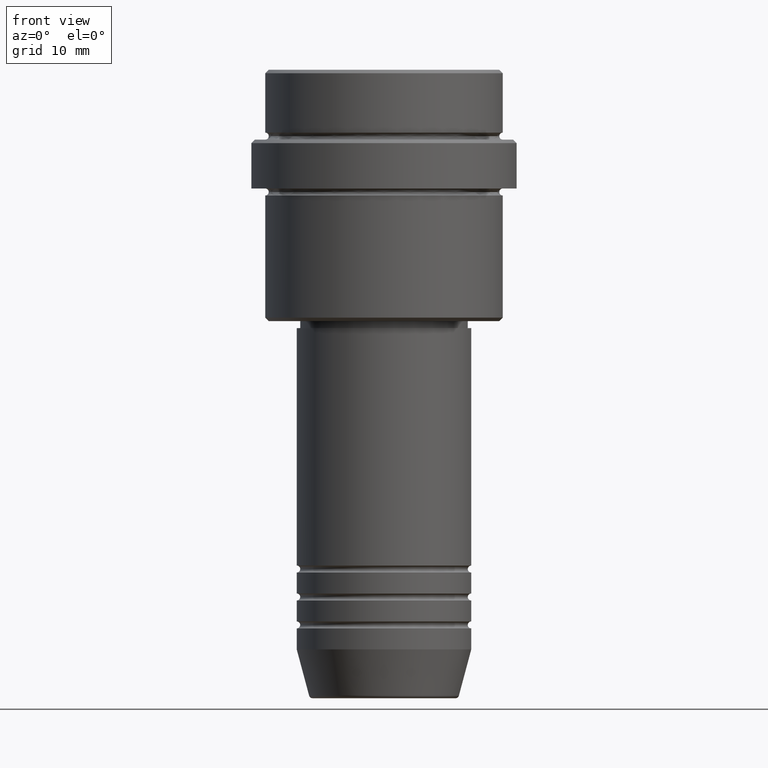
[diagram: clean part render]
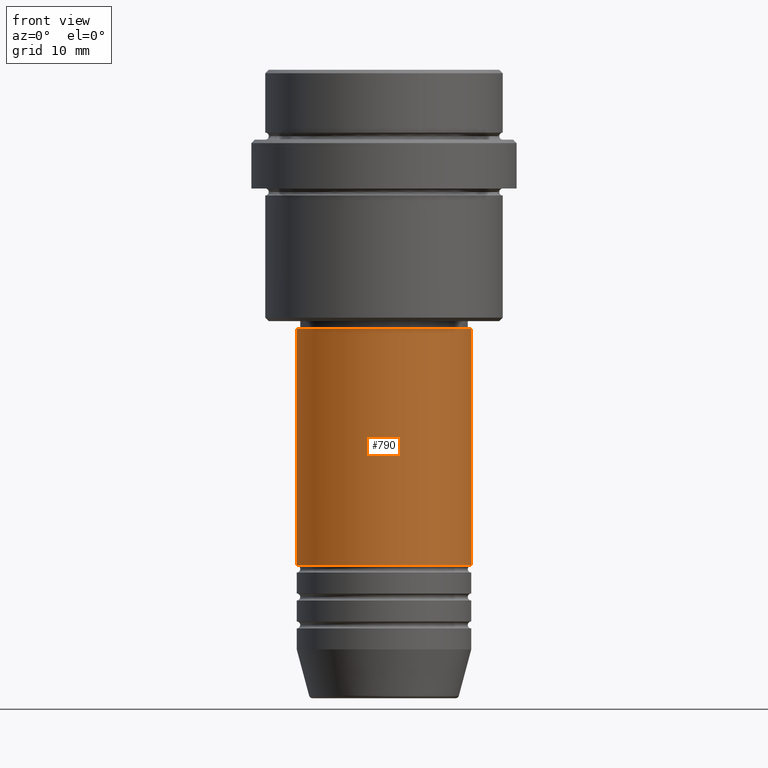
[diagram: same view with one face highlighted and labeled with its STEP entity id]
A machine part, front view. The second image highlights one B-rep face of the part: STEP entity #790.
In plain terms, the highlighted cylindrical surface (partial cylindrical patch) has radius 12.5 mm, axis along (-0, -0, 1).
Its self-contained STEP definition (entity closure, byte-faithful):
#129 = DIRECTION ( 'NONE',  ( 1.000000000000000000, 0.000000000000000000, 0.000000000000000000 ) ) ;
#190 = CARTESIAN_POINT ( 'NONE',  ( -12.50000000000000000, 1.530808498934191521E-15, 0.000000000000000000 ) ) ;
#257 = LINE ( 'NONE', #1131, #872 ) ;
#261 = EDGE_CURVE ( 'NONE', #1155, #1157, #257, .T. ) ;
#262 = VECTOR ( 'NONE', #624, 1000.000000000000000 ) ;
#281 = AXIS2_PLACEMENT_3D ( 'NONE', #998, #1193, #129 ) ;
#284 = DIRECTION ( 'NONE',  ( -0.000000000000000000, -0.000000000000000000, 1.000000000000000000 ) ) ;
#347 = CIRCLE ( 'NONE', #281, 12.50000000000000000 ) ;
#436 = CIRCLE ( 'NONE', #667, 12.50000000000000000 ) ;
#491 = VERTEX_POINT ( 'NONE', #1269 ) ;
#498 = LINE ( 'NONE', #190, #262 ) ;
#530 = CYLINDRICAL_SURFACE ( 'NONE', #1129, 12.50000000000000000 ) ;
#556 = ORIENTED_EDGE ( 'NONE', *, *, #1234, .F. ) ;
#609 = DIRECTION ( 'NONE',  ( 1.000000000000000000, 0.000000000000000000, 0.000000000000000000 ) ) ;
#624 = DIRECTION ( 'NONE',  ( -0.000000000000000000, -0.000000000000000000, 1.000000000000000000 ) ) ;
#631 = CARTESIAN_POINT ( 'NONE',  ( 12.50000000000000000, 0.000000000000000000, -37.00000000000000000 ) ) ;
#667 = AXIS2_PLACEMENT_3D ( 'NONE', #1266, #284, #609 ) ;
#677 = DIRECTION ( 'NONE',  ( -0.000000000000000000, -0.000000000000000000, 1.000000000000000000 ) ) ;
#742 = CARTESIAN_POINT ( 'NONE',  ( 12.50000000000000000, 0.000000000000000000, -70.99999999999990052 ) ) ;
#779 = FACE_OUTER_BOUND ( 'NONE', #795, .T. ) ;
#790 = ADVANCED_FACE ( 'NONE', ( #779 ), #530, .T. ) ;
#795 = EDGE_LOOP ( 'NONE', ( #556, #900, #1332, #891 ) ) ;
#872 = VECTOR ( 'NONE', #677, 1000.000000000000000 ) ;
#891 = ORIENTED_EDGE ( 'NONE', *, *, #932, .F. ) ;
#900 = ORIENTED_EDGE ( 'NONE', *, *, #1325, .T. ) ;
#932 = EDGE_CURVE ( 'NONE', #1207, #1157, #347, .T. ) ;
#998 = CARTESIAN_POINT ( 'NONE',  ( 0.000000000000000000, 0.000000000000000000, -37.00000000000000000 ) ) ;
#1092 = DIRECTION ( 'NONE',  ( -0.000000000000000000, -0.000000000000000000, 1.000000000000000000 ) ) ;
#1129 = AXIS2_PLACEMENT_3D ( 'NONE', #1224, #1092, #1338 ) ;
#1131 = CARTESIAN_POINT ( 'NONE',  ( 12.50000000000000000, 0.000000000000000000, 0.000000000000000000 ) ) ;
#1155 = VERTEX_POINT ( 'NONE', #742 ) ;
#1157 = VERTEX_POINT ( 'NONE', #631 ) ;
#1193 = DIRECTION ( 'NONE',  ( -0.000000000000000000, -0.000000000000000000, 1.000000000000000000 ) ) ;
#1207 = VERTEX_POINT ( 'NONE', #1275 ) ;
#1224 = CARTESIAN_POINT ( 'NONE',  ( 0.000000000000000000, 0.000000000000000000, 0.000000000000000000 ) ) ;
#1234 = EDGE_CURVE ( 'NONE', #491, #1207, #498, .T. ) ;
#1266 = CARTESIAN_POINT ( 'NONE',  ( 0.000000000000000000, 0.000000000000000000, -70.99999999999990052 ) ) ;
#1269 = CARTESIAN_POINT ( 'NONE',  ( -12.50000000000000000, 1.530808498934191521E-15, -70.99999999999990052 ) ) ;
#1275 = CARTESIAN_POINT ( 'NONE',  ( -12.50000000000000000, 1.530808498934191521E-15, -37.00000000000000000 ) ) ;
#1325 = EDGE_CURVE ( 'NONE', #491, #1155, #436, .T. ) ;
#1332 = ORIENTED_EDGE ( 'NONE', *, *, #261, .T. ) ;
#1338 = DIRECTION ( 'NONE',  ( 1.000000000000000000, 0.000000000000000000, 0.000000000000000000 ) ) ;